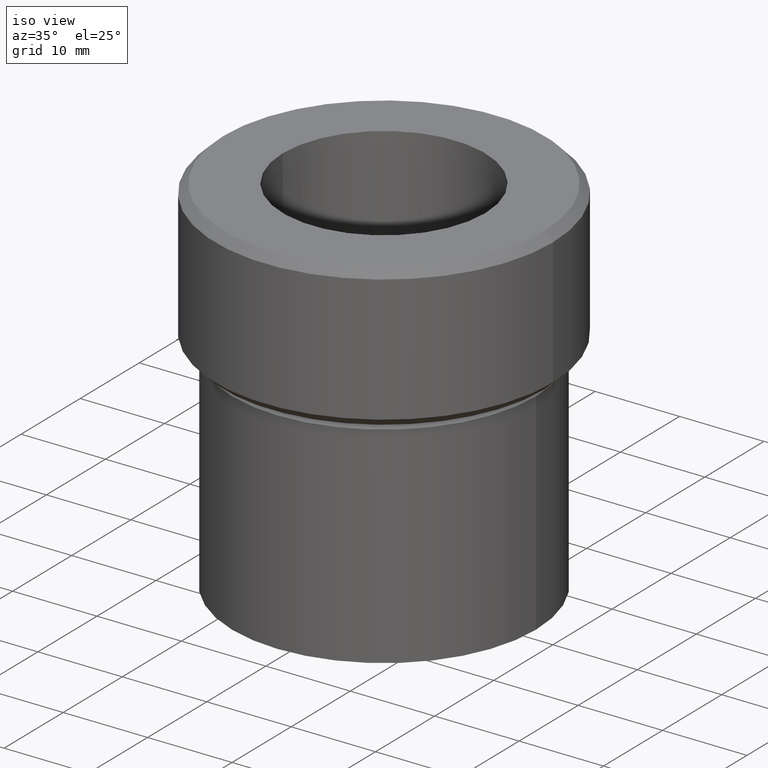
[diagram: clean part render]
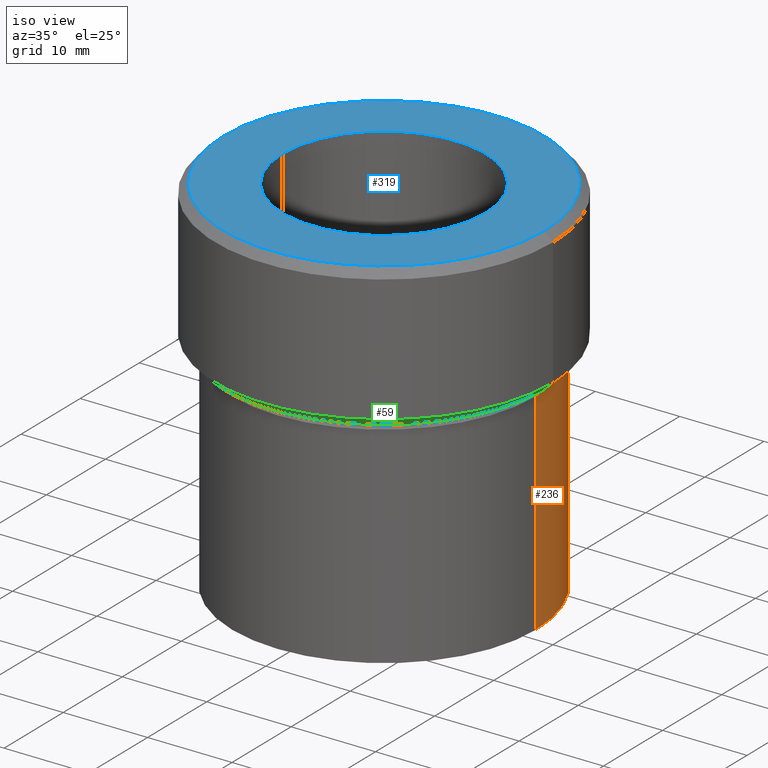
[diagram: same view with three faces highlighted in distinct colors, each labeled with its STEP entity id]
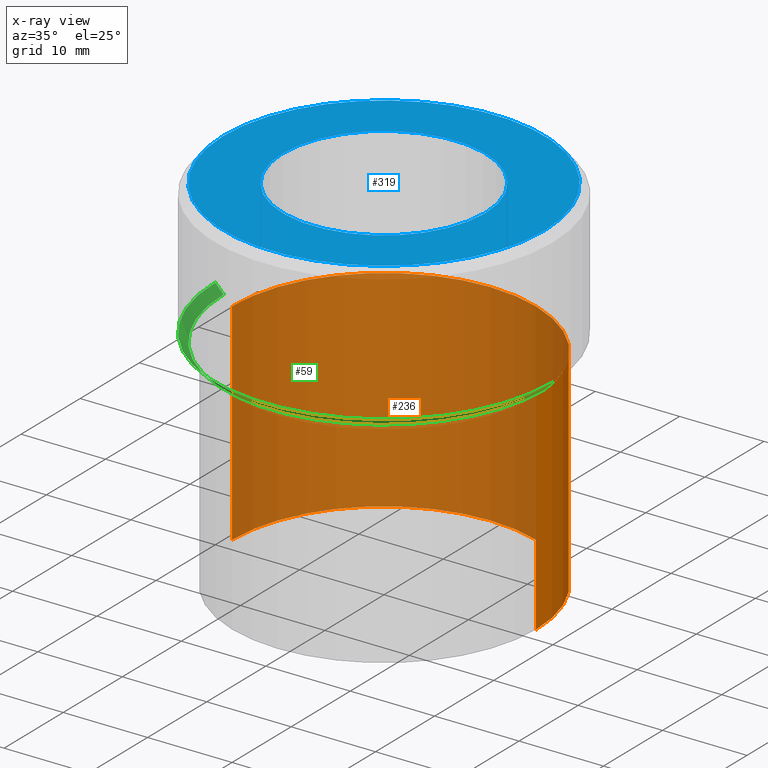
[diagram: x-ray of the same camera — body ghosted, the three highlighted faces saturated]
A machine part, iso view with three faces highlighted in distinct colors.
The next image is the same camera in x-ray (body ghosted, the three faces saturated) — at least one of them is partly hidden behind the body in this view.
Their STEP definitions:

[orange] entity #236 — the highlighted cylindrical surface (partial cylindrical patch) has radius 18 mm, axis along (-0, -0, 1).
#3 = AXIS2_PLACEMENT_3D ( 'NONE', #427, #395, #222 ) ;
#43 = VERTEX_POINT ( 'NONE', #180 ) ;
#49 = EDGE_CURVE ( 'NONE', #271, #384, #501, .T. ) ;
#63 = DIRECTION ( 'NONE',  ( -0.000000000000000000, -0.000000000000000000, 1.000000000000000000 ) ) ;
#74 = AXIS2_PLACEMENT_3D ( 'NONE', #341, #106, #304 ) ;
#106 = DIRECTION ( 'NONE',  ( -0.000000000000000000, -0.000000000000000000, 1.000000000000000000 ) ) ;
#110 = EDGE_LOOP ( 'NONE', ( #355, #213, #168, #375 ) ) ;
#126 = DIRECTION ( 'NONE',  ( -0.000000000000000000, -0.000000000000000000, 1.000000000000000000 ) ) ;
#128 = LINE ( 'NONE', #337, #346 ) ;
#130 = EDGE_CURVE ( 'NONE', #271, #43, #508, .T. ) ;
#137 = CARTESIAN_POINT ( 'NONE',  ( -18.00000000000000000, 2.204364238465235428E-15, -18.00000000000000000 ) ) ;
#153 = DIRECTION ( 'NONE',  ( 1.000000000000000000, 0.000000000000000000, 0.000000000000000000 ) ) ;
#155 = DIRECTION ( 'NONE',  ( -0.000000000000000000, -0.000000000000000000, 1.000000000000000000 ) ) ;
#168 = ORIENTED_EDGE ( 'NONE', *, *, #482, .F. ) ;
#180 = CARTESIAN_POINT ( 'NONE',  ( 18.00000000000000000, 0.000000000000000000, -18.00000000000000000 ) ) ;
#213 = ORIENTED_EDGE ( 'NONE', *, *, #411, .T. ) ;
#222 = DIRECTION ( 'NONE',  ( 1.000000000000000000, 0.000000000000000000, 0.000000000000000000 ) ) ;
#235 = FACE_OUTER_BOUND ( 'NONE', #110, .T. ) ;
#236 = ADVANCED_FACE ( 'NONE', ( #235 ), #487, .T. ) ;
#271 = VERTEX_POINT ( 'NONE', #439 ) ;
#304 = DIRECTION ( 'NONE',  ( 1.000000000000000000, 0.000000000000000000, 0.000000000000000000 ) ) ;
#336 = CIRCLE ( 'NONE', #74, 18.00000000000000000 ) ;
#337 = CARTESIAN_POINT ( 'NONE',  ( -18.00000000000000355, 2.204364238465235822E-15, 0.000000000000000000 ) ) ;
#341 = CARTESIAN_POINT ( 'NONE',  ( 0.000000000000000000, 0.000000000000000000, -18.00000000000000000 ) ) ;
#346 = VECTOR ( 'NONE', #126, 1000.000000000000000 ) ;
#355 = ORIENTED_EDGE ( 'NONE', *, *, #49, .T. ) ;
#360 = VERTEX_POINT ( 'NONE', #137 ) ;
#367 = AXIS2_PLACEMENT_3D ( 'NONE', #405, #155, #153 ) ;
#375 = ORIENTED_EDGE ( 'NONE', *, *, #130, .F. ) ;
#384 = VERTEX_POINT ( 'NONE', #459 ) ;
#395 = DIRECTION ( 'NONE',  ( -0.000000000000000000, -0.000000000000000000, 1.000000000000000000 ) ) ;
#405 = CARTESIAN_POINT ( 'NONE',  ( 0.000000000000000000, 0.000000000000000000, 0.000000000000000000 ) ) ;
#411 = EDGE_CURVE ( 'NONE', #384, #360, #128, .T. ) ;
#427 = CARTESIAN_POINT ( 'NONE',  ( 0.000000000000000000, 0.000000000000000000, -43.00000000000000000 ) ) ;
#439 = CARTESIAN_POINT ( 'NONE',  ( 18.00000000000000355, 0.000000000000000000, -43.00000000000000000 ) ) ;
#446 = VECTOR ( 'NONE', #63, 1000.000000000000000 ) ;
#459 = CARTESIAN_POINT ( 'NONE',  ( -18.00000000000000355, 2.204364238465235822E-15, -43.00000000000000000 ) ) ;
#465 = CARTESIAN_POINT ( 'NONE',  ( 18.00000000000000355, 0.000000000000000000, 0.000000000000000000 ) ) ;
#482 = EDGE_CURVE ( 'NONE', #43, #360, #336, .T. ) ;
#487 = CYLINDRICAL_SURFACE ( 'NONE', #367, 18.00000000000000355 ) ;
#501 = CIRCLE ( 'NONE', #3, 18.00000000000000355 ) ;
#508 = LINE ( 'NONE', #465, #446 ) ;

[blue] entity #319 — the highlighted planar face has unit normal (0, -0, 1).
#1 = EDGE_CURVE ( 'NONE', #331, #24, #38, .T. ) ;
#24 = VERTEX_POINT ( 'NONE', #67 ) ;
#29 = ORIENTED_EDGE ( 'NONE', *, *, #273, .F. ) ;
#38 = CIRCLE ( 'NONE', #200, 19.00000000000001066 ) ;
#40 = CARTESIAN_POINT ( 'NONE',  ( 0.000000000000000000, 0.000000000000000000, 0.000000000000000000 ) ) ;
#48 = ORIENTED_EDGE ( 'NONE', *, *, #307, .F. ) ;
#53 = VERTEX_POINT ( 'NONE', #61 ) ;
#61 = CARTESIAN_POINT ( 'NONE',  ( 12.00000000000000178, 0.000000000000000000, 0.000000000000000000 ) ) ;
#67 = CARTESIAN_POINT ( 'NONE',  ( 19.00000000000001066, 2.388061258337339728E-15, 0.000000000000000000 ) ) ;
#78 = DIRECTION ( 'NONE',  ( 1.000000000000000000, 0.000000000000000000, 0.000000000000000000 ) ) ;
#97 = VERTEX_POINT ( 'NONE', #311 ) ;
#122 = DIRECTION ( 'NONE',  ( -0.000000000000000000, -0.000000000000000000, 1.000000000000000000 ) ) ;
#165 = AXIS2_PLACEMENT_3D ( 'NONE', #276, #407, #199 ) ;
#171 = DIRECTION ( 'NONE',  ( 1.000000000000000000, 0.000000000000000000, 0.000000000000000000 ) ) ;
#188 = ORIENTED_EDGE ( 'NONE', *, *, #1, .T. ) ;
#199 = DIRECTION ( 'NONE',  ( 1.000000000000000000, 0.000000000000000000, 0.000000000000000000 ) ) ;
#200 = AXIS2_PLACEMENT_3D ( 'NONE', #348, #303, #353 ) ;
#202 = DIRECTION ( 'NONE',  ( 1.000000000000000000, 0.000000000000000000, 0.000000000000000000 ) ) ;
#210 = CARTESIAN_POINT ( 'NONE',  ( 0.000000000000000000, 0.000000000000000000, 0.000000000000000000 ) ) ;
#215 = AXIS2_PLACEMENT_3D ( 'NONE', #40, #242, #202 ) ;
#242 = DIRECTION ( 'NONE',  ( 0.000000000000000000, -0.000000000000000000, 1.000000000000000000 ) ) ;
#248 = EDGE_LOOP ( 'NONE', ( #48, #29 ) ) ;
#260 = AXIS2_PLACEMENT_3D ( 'NONE', #210, #380, #171 ) ;
#273 = EDGE_CURVE ( 'NONE', #97, #53, #296, .T. ) ;
#276 = CARTESIAN_POINT ( 'NONE',  ( 0.000000000000000000, 0.000000000000000000, 0.000000000000000000 ) ) ;
#296 = CIRCLE ( 'NONE', #326, 12.00000000000000178 ) ;
#303 = DIRECTION ( 'NONE',  ( -0.000000000000000000, -0.000000000000000000, 1.000000000000000000 ) ) ;
#307 = EDGE_CURVE ( 'NONE', #53, #97, #400, .T. ) ;
#311 = CARTESIAN_POINT ( 'NONE',  ( -12.00000000000000178, 1.469576158976824144E-15, 0.000000000000000000 ) ) ;
#319 = ADVANCED_FACE ( 'NONE', ( #323, #521 ), #322, .T. ) ;
#322 = PLANE ( 'NONE',  #215 ) ;
#323 = FACE_BOUND ( 'NONE', #248, .T. ) ;
#326 = AXIS2_PLACEMENT_3D ( 'NONE', #478, #122, #78 ) ;
#331 = VERTEX_POINT ( 'NONE', #410 ) ;
#348 = CARTESIAN_POINT ( 'NONE',  ( 0.000000000000000000, 0.000000000000000000, 0.000000000000000000 ) ) ;
#353 = DIRECTION ( 'NONE',  ( 1.000000000000000000, 0.000000000000000000, 0.000000000000000000 ) ) ;
#373 = EDGE_LOOP ( 'NONE', ( #188, #500 ) ) ;
#380 = DIRECTION ( 'NONE',  ( -0.000000000000000000, -0.000000000000000000, 1.000000000000000000 ) ) ;
#400 = CIRCLE ( 'NONE', #165, 12.00000000000000178 ) ;
#407 = DIRECTION ( 'NONE',  ( -0.000000000000000000, -0.000000000000000000, 1.000000000000000000 ) ) ;
#410 = CARTESIAN_POINT ( 'NONE',  ( -19.00000000000001066, 0.000000000000000000, 0.000000000000000000 ) ) ;
#447 = CIRCLE ( 'NONE', #260, 19.00000000000001066 ) ;
#452 = EDGE_CURVE ( 'NONE', #24, #331, #447, .T. ) ;
#478 = CARTESIAN_POINT ( 'NONE',  ( 0.000000000000000000, 0.000000000000000000, 0.000000000000000000 ) ) ;
#500 = ORIENTED_EDGE ( 'NONE', *, *, #452, .T. ) ;
#521 = FACE_OUTER_BOUND ( 'NONE', #373, .T. ) ;

[green] entity #59 — the highlighted conical surface has half-angle 45 deg.
#5 = VERTEX_POINT ( 'NONE', #58 ) ;
#7 = EDGE_LOOP ( 'NONE', ( #312, #87, #115, #275 ) ) ;
#8 = DIRECTION ( 'NONE',  ( -0.000000000000000000, -0.000000000000000000, 1.000000000000000000 ) ) ;
#25 = FACE_OUTER_BOUND ( 'NONE', #7, .T. ) ;
#35 = EDGE_CURVE ( 'NONE', #5, #432, #145, .T. ) ;
#58 = CARTESIAN_POINT ( 'NONE',  ( -19.00000000000000355, 2.388061258337338939E-15, -17.00000000000000000 ) ) ;
#59 = ADVANCED_FACE ( 'NONE', ( #25 ), #389, .T. ) ;
#80 = VECTOR ( 'NONE', #526, 1000.000000000000114 ) ;
#83 = CARTESIAN_POINT ( 'NONE',  ( -20.00000000000000000, 2.449293598294706513E-15, -16.00000000000000355 ) ) ;
#85 = CARTESIAN_POINT ( 'NONE',  ( 19.00000000000000355, 0.000000000000000000, -17.00000000000000000 ) ) ;
#87 = ORIENTED_EDGE ( 'NONE', *, *, #88, .F. ) ;
#88 = EDGE_CURVE ( 'NONE', #379, #5, #89, .T. ) ;
#89 = CIRCLE ( 'NONE', #408, 19.00000000000000355 ) ;
#98 = CARTESIAN_POINT ( 'NONE',  ( -20.00000000000000000, 2.449293598294706513E-15, -16.00000000000000355 ) ) ;
#109 = CIRCLE ( 'NONE', #474, 20.00000000000000000 ) ;
#115 = ORIENTED_EDGE ( 'NONE', *, *, #313, .T. ) ;
#145 = LINE ( 'NONE', #98, #343 ) ;
#187 = DIRECTION ( 'NONE',  ( -1.000000000000000000, 0.000000000000000000, 0.000000000000000000 ) ) ;
#230 = DIRECTION ( 'NONE',  ( 1.000000000000000000, 0.000000000000000000, 0.000000000000000000 ) ) ;
#266 = VERTEX_POINT ( 'NONE', #443 ) ;
#274 = DIRECTION ( 'NONE',  ( -0.000000000000000000, -0.000000000000000000, 1.000000000000000000 ) ) ;
#275 = ORIENTED_EDGE ( 'NONE', *, *, #332, .F. ) ;
#309 = DIRECTION ( 'NONE',  ( 0.000000000000000000, 0.000000000000000000, -1.000000000000000000 ) ) ;
#312 = ORIENTED_EDGE ( 'NONE', *, *, #35, .F. ) ;
#313 = EDGE_CURVE ( 'NONE', #379, #266, #481, .T. ) ;
#332 = EDGE_CURVE ( 'NONE', #432, #266, #109, .T. ) ;
#343 = VECTOR ( 'NONE', #388, 1000.000000000000114 ) ;
#361 = CARTESIAN_POINT ( 'NONE',  ( 0.000000000000000000, 0.000000000000000000, -16.00000000000000355 ) ) ;
#366 = CARTESIAN_POINT ( 'NONE',  ( 20.00000000000000000, 0.000000000000000000, -16.00000000000000355 ) ) ;
#379 = VERTEX_POINT ( 'NONE', #85 ) ;
#382 = DIRECTION ( 'NONE',  ( -1.000000000000000000, 0.000000000000000000, 0.000000000000000000 ) ) ;
#388 = DIRECTION ( 'NONE',  ( -0.7071067811865474617, 8.659560562354932858E-17, 0.7071067811865474617 ) ) ;
#389 = CONICAL_SURFACE ( 'NONE', #490, 20.00000000000000000, 0.7853981633974482790 ) ;
#393 = CARTESIAN_POINT ( 'NONE',  ( 0.000000000000000000, 0.000000000000000000, -16.00000000000000355 ) ) ;
#408 = AXIS2_PLACEMENT_3D ( 'NONE', #506, #309, #187 ) ;
#432 = VERTEX_POINT ( 'NONE', #83 ) ;
#443 = CARTESIAN_POINT ( 'NONE',  ( 20.00000000000000000, 0.000000000000000000, -16.00000000000000355 ) ) ;
#474 = AXIS2_PLACEMENT_3D ( 'NONE', #361, #8, #382 ) ;
#481 = LINE ( 'NONE', #366, #80 ) ;
#490 = AXIS2_PLACEMENT_3D ( 'NONE', #393, #274, #230 ) ;
#506 = CARTESIAN_POINT ( 'NONE',  ( 0.000000000000000000, 0.000000000000000000, -17.00000000000000000 ) ) ;
#526 = DIRECTION ( 'NONE',  ( 0.7071067811865474617, 0.000000000000000000, 0.7071067811865474617 ) ) ;